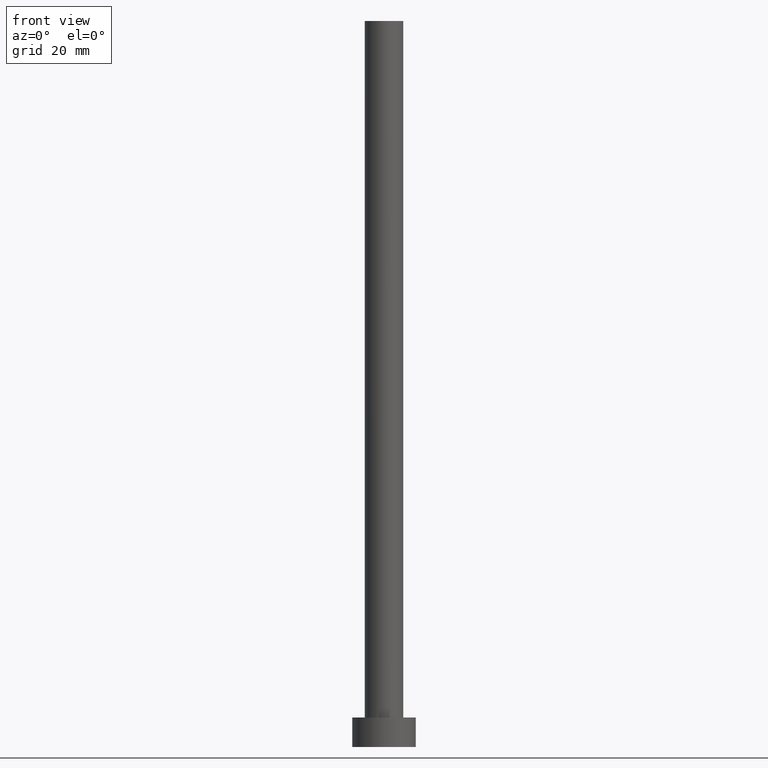
[diagram: clean part render]
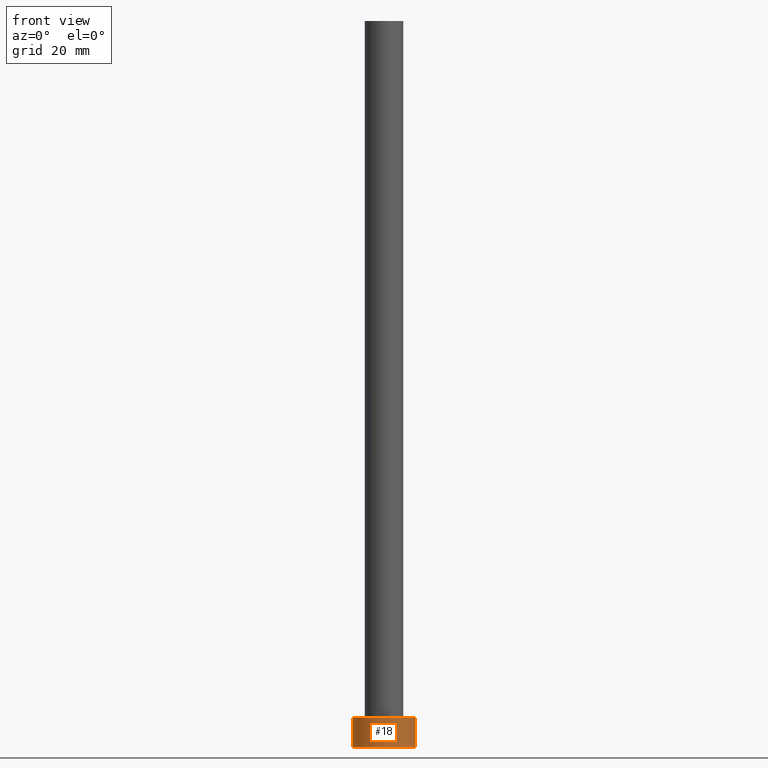
[diagram: same view with one face highlighted and labeled with its STEP entity id]
A machine part, front view. The second image highlights one B-rep face of the part: STEP entity #18.
In plain terms, the highlighted cylindrical surface (edge-blend (fillet) strip) has radius 7 mm, axis along (-0, -0, -1).
Its self-contained STEP definition (entity closure, byte-faithful):
#12 = DIRECTION ( 'NONE',  ( 0.000000000000000000, 0.000000000000000000, 1.000000000000000000 ) ) ;
#18 = ADVANCED_FACE ( 'NONE', ( #109 ), #227, .T. ) ;
#34 = DIRECTION ( 'NONE',  ( -1.000000000000000000, 0.000000000000000000, 0.000000000000000000 ) ) ;
#45 = ORIENTED_EDGE ( 'NONE', *, *, #128, .F. ) ;
#49 = DIRECTION ( 'NONE',  ( -0.000000000000000000, -0.000000000000000000, -1.000000000000000000 ) ) ;
#52 = EDGE_CURVE ( 'NONE', #108, #243, #204, .T. ) ;
#58 = CARTESIAN_POINT ( 'NONE',  ( -7.000000000000000000, 0.000000000000000000, 6.500000000000000000 ) ) ;
#61 = CARTESIAN_POINT ( 'NONE',  ( 0.000000000000000000, 0.000000000000000000, 0.000000000000000000 ) ) ;
#63 = AXIS2_PLACEMENT_3D ( 'NONE', #61, #230, #120 ) ;
#64 = EDGE_LOOP ( 'NONE', ( #45, #169, #184, #185 ) ) ;
#76 = DIRECTION ( 'NONE',  ( -0.000000000000000000, -0.000000000000000000, -1.000000000000000000 ) ) ;
#87 = EDGE_CURVE ( 'NONE', #103, #242, #221, .T. ) ;
#96 = LINE ( 'NONE', #235, #131 ) ;
#103 = VERTEX_POINT ( 'NONE', #138 ) ;
#105 = AXIS2_PLACEMENT_3D ( 'NONE', #249, #49, #34 ) ;
#108 = VERTEX_POINT ( 'NONE', #58 ) ;
#109 = FACE_OUTER_BOUND ( 'NONE', #64, .T. ) ;
#117 = CARTESIAN_POINT ( 'NONE',  ( 0.000000000000000000, 0.000000000000000000, 6.500000000000000000 ) ) ;
#120 = DIRECTION ( 'NONE',  ( 1.000000000000000000, 0.000000000000000000, 0.000000000000000000 ) ) ;
#123 = EDGE_CURVE ( 'NONE', #108, #103, #96, .T. ) ;
#128 = EDGE_CURVE ( 'NONE', #243, #242, #137, .T. ) ;
#131 = VECTOR ( 'NONE', #76, 1000.000000000000000 ) ;
#137 = LINE ( 'NONE', #142, #201 ) ;
#138 = CARTESIAN_POINT ( 'NONE',  ( -7.000000000000000000, 0.000000000000000000, 0.000000000000000000 ) ) ;
#142 = CARTESIAN_POINT ( 'NONE',  ( 7.000000000000000000, 8.572527594031471218E-16, 6.500000000000000000 ) ) ;
#169 = ORIENTED_EDGE ( 'NONE', *, *, #52, .F. ) ;
#180 = DIRECTION ( 'NONE',  ( -0.000000000000000000, -0.000000000000000000, -1.000000000000000000 ) ) ;
#184 = ORIENTED_EDGE ( 'NONE', *, *, #123, .T. ) ;
#185 = ORIENTED_EDGE ( 'NONE', *, *, #87, .T. ) ;
#190 = CARTESIAN_POINT ( 'NONE',  ( 7.000000000000000000, 8.572527594031471218E-16, 6.500000000000000000 ) ) ;
#191 = AXIS2_PLACEMENT_3D ( 'NONE', #117, #12, #255 ) ;
#201 = VECTOR ( 'NONE', #180, 1000.000000000000000 ) ;
#204 = CIRCLE ( 'NONE', #191, 7.000000000000000000 ) ;
#221 = CIRCLE ( 'NONE', #63, 7.000000000000000000 ) ;
#227 = CYLINDRICAL_SURFACE ( 'NONE', #105, 7.000000000000000000 ) ;
#230 = DIRECTION ( 'NONE',  ( 0.000000000000000000, 0.000000000000000000, 1.000000000000000000 ) ) ;
#235 = CARTESIAN_POINT ( 'NONE',  ( -7.000000000000000000, 0.000000000000000000, 6.500000000000000000 ) ) ;
#242 = VERTEX_POINT ( 'NONE', #250 ) ;
#243 = VERTEX_POINT ( 'NONE', #190 ) ;
#249 = CARTESIAN_POINT ( 'NONE',  ( 0.000000000000000000, 0.000000000000000000, 6.500000000000000000 ) ) ;
#250 = CARTESIAN_POINT ( 'NONE',  ( 7.000000000000000000, 8.572527594031471218E-16, 0.000000000000000000 ) ) ;
#255 = DIRECTION ( 'NONE',  ( 1.000000000000000000, 0.000000000000000000, 0.000000000000000000 ) ) ;